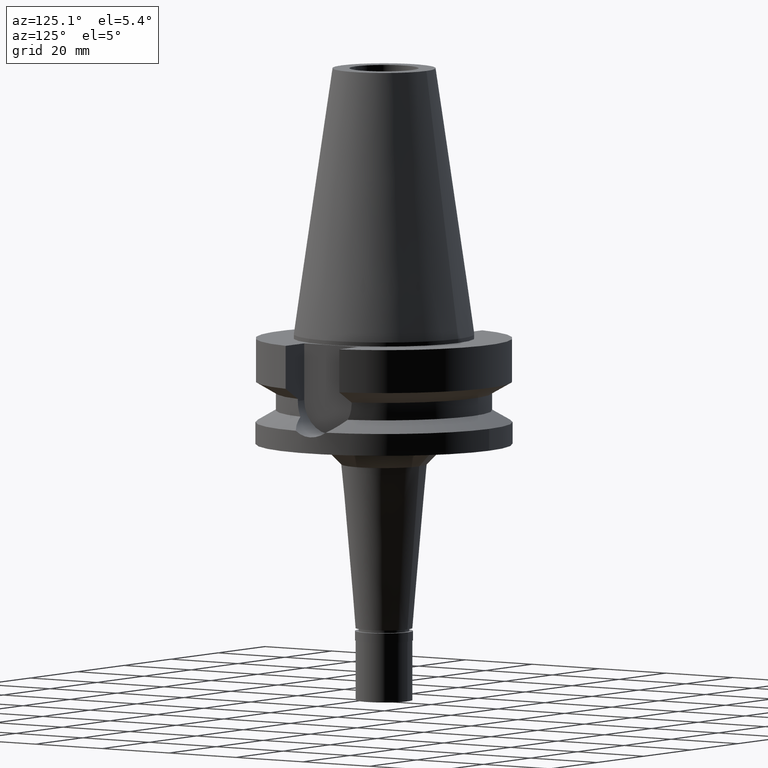
[diagram: clean part render]
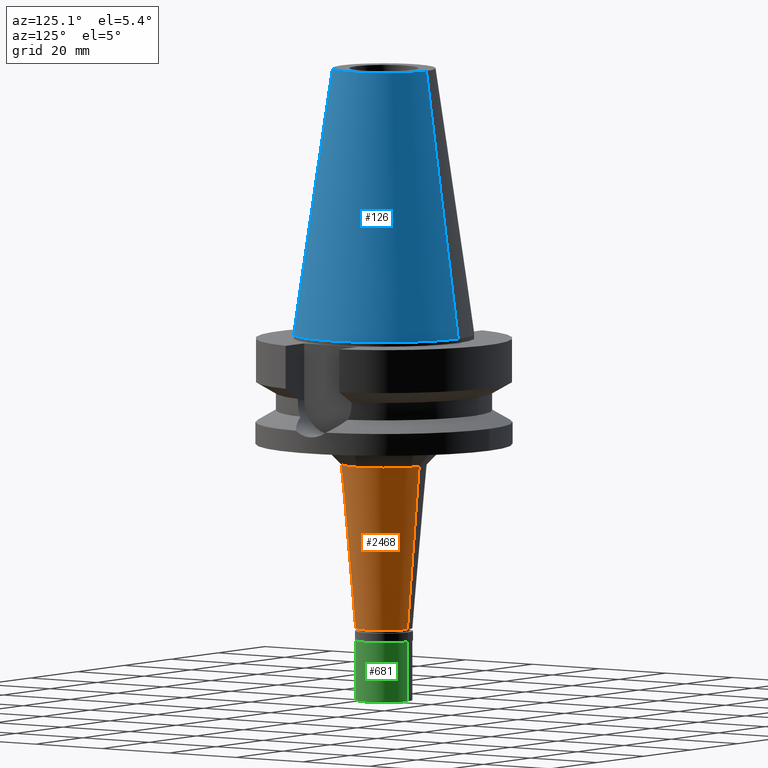
[diagram: same view with three faces highlighted in distinct colors, each labeled with its STEP entity id]
A machine part, auxiliary view with three faces highlighted in distinct colors.
Their STEP definitions:

[orange] entity #2468 — the highlighted conical surface has half-angle 5 deg.
#39 = AXIS2_PLACEMENT_3D ( 'NONE', #2481, #2237, #1292 ) ;
#75 = ORIENTED_EDGE ( 'NONE', *, *, #2161, .T. ) ;
#256 = DIRECTION ( 'NONE',  ( 0.0000000000000000000, -1.000000000000000000, 0.0000000000000000000 ) ) ;
#395 = DIRECTION ( 'NONE',  ( 0.0000000000000000000, -0.08715574274759568807, -0.9961946980917509853 ) ) ;
#436 = VERTEX_POINT ( 'NONE', #2792 ) ;
#515 = VECTOR ( 'NONE', #395, 1000.000000000000114 ) ;
#534 = CARTESIAN_POINT ( 'NONE',  ( 0.0000000000000000000, 0.0000000000000000000, -32.00000000000000000 ) ) ;
#601 = ORIENTED_EDGE ( 'NONE', *, *, #638, .F. ) ;
#638 = EDGE_CURVE ( 'NONE', #436, #792, #1002, .T. ) ;
#688 = DIRECTION ( 'NONE',  ( 0.0000000000000000000, 0.08715574274759568807, -0.9961946980917509853 ) ) ;
#704 = CARTESIAN_POINT ( 'NONE',  ( 0.0000000000000000000, -10.52579314008999845, -32.00000000000000000 ) ) ;
#712 = AXIS2_PLACEMENT_3D ( 'NONE', #2322, #1572, #256 ) ;
#780 = DIRECTION ( 'NONE',  ( 0.0000000000000000000, -1.000000000000000000, 0.0000000000000000000 ) ) ;
#792 = VERTEX_POINT ( 'NONE', #2875 ) ;
#1002 = CIRCLE ( 'NONE', #1642, 10.52579314008999845 ) ;
#1095 = CARTESIAN_POINT ( 'NONE',  ( 0.0000000000000000000, 10.52579314008999845, -32.00000000000000000 ) ) ;
#1241 = VERTEX_POINT ( 'NONE', #2383 ) ;
#1279 = DIRECTION ( 'NONE',  ( 0.0000000000000000000, 0.0000000000000000000, 1.000000000000000000 ) ) ;
#1292 = DIRECTION ( 'NONE',  ( 0.0000000000000000000, 1.000000000000000000, 0.0000000000000000000 ) ) ;
#1390 = LINE ( 'NONE', #704, #2298 ) ;
#1397 = CONICAL_SURFACE ( 'NONE', #39, 8.762896570046999400, 0.08726646259969973729 ) ;
#1572 = DIRECTION ( 'NONE',  ( 0.0000000000000000000, 0.0000000000000000000, 1.000000000000000000 ) ) ;
#1610 = ORIENTED_EDGE ( 'NONE', *, *, #1989, .T. ) ;
#1642 = AXIS2_PLACEMENT_3D ( 'NONE', #534, #1279, #780 ) ;
#1774 = ORIENTED_EDGE ( 'NONE', *, *, #2069, .F. ) ;
#1970 = EDGE_LOOP ( 'NONE', ( #601, #75, #1610, #1774 ) ) ;
#1977 = FACE_OUTER_BOUND ( 'NONE', #1970, .T. ) ;
#1989 = EDGE_CURVE ( 'NONE', #2581, #1241, #2686, .T. ) ;
#2069 = EDGE_CURVE ( 'NONE', #792, #1241, #2467, .T. ) ;
#2161 = EDGE_CURVE ( 'NONE', #436, #2581, #1390, .T. ) ;
#2237 = DIRECTION ( 'NONE',  ( 0.0000000000000000000, 0.0000000000000000000, 1.000000000000000000 ) ) ;
#2298 = VECTOR ( 'NONE', #688, 1000.000000000000114 ) ;
#2322 = CARTESIAN_POINT ( 'NONE',  ( 0.0000000000000000000, 0.0000000000000000000, -72.29999999999999716 ) ) ;
#2383 = CARTESIAN_POINT ( 'NONE',  ( 0.0000000000000000000, 7.000000000000000000, -72.29999999999999716 ) ) ;
#2467 = LINE ( 'NONE', #1095, #515 ) ;
#2468 = ADVANCED_FACE ( 'NONE', ( #1977 ), #1397, .T. ) ;
#2481 = CARTESIAN_POINT ( 'NONE',  ( 0.0000000000000000000, 0.0000000000000000000, -52.14999999999999858 ) ) ;
#2581 = VERTEX_POINT ( 'NONE', #2694 ) ;
#2686 = CIRCLE ( 'NONE', #712, 7.000000000000000000 ) ;
#2694 = CARTESIAN_POINT ( 'NONE',  ( 0.0000000000000000000, -7.000000000000000000, -72.29999999999999716 ) ) ;
#2792 = CARTESIAN_POINT ( 'NONE',  ( 0.0000000000000000000, -10.52579314008999845, -32.00000000000000000 ) ) ;
#2875 = CARTESIAN_POINT ( 'NONE',  ( 0.0000000000000000000, 10.52579314008999845, -32.00000000000000000 ) ) ;

[blue] entity #126 — the highlighted conical surface has half-angle 8.297 deg.
#77 = ORIENTED_EDGE ( 'NONE', *, *, #2661, .T. ) ;
#126 = ADVANCED_FACE ( 'NONE', ( #2363 ), #995, .T. ) ;
#196 = CARTESIAN_POINT ( 'NONE',  ( 0.0000000000000000000, 12.68766899429999917, 65.40000000000000568 ) ) ;
#214 = CARTESIAN_POINT ( 'NONE',  ( 0.0000000000000000000, 1.625106302469000024E-14, 65.40000000000000568 ) ) ;
#232 = LINE ( 'NONE', #1915, #1050 ) ;
#241 = DIRECTION ( 'NONE',  ( 0.0000000000000000000, 1.000000000000000000, 0.0000000000000000000 ) ) ;
#265 = CARTESIAN_POINT ( 'NONE',  ( 0.0000000000000000000, 12.68766899429999917, 65.40000000000000568 ) ) ;
#442 = DIRECTION ( 'NONE',  ( 0.0000000000000000000, -0.1443043893539925626, -0.9895333461855498891 ) ) ;
#510 = CARTESIAN_POINT ( 'NONE',  ( 0.0000000000000000000, 22.22500000000000142, 1.065814103639999827E-13 ) ) ;
#513 = LINE ( 'NONE', #265, #1309 ) ;
#539 = VERTEX_POINT ( 'NONE', #2569 ) ;
#587 = CARTESIAN_POINT ( 'NONE',  ( 0.0000000000000000000, 1.625106302469000024E-14, 2.842170943039999687E-14 ) ) ;
#762 = DIRECTION ( 'NONE',  ( 0.0000000000000000000, 0.0000000000000000000, -1.000000000000000000 ) ) ;
#894 = CARTESIAN_POINT ( 'NONE',  ( 0.0000000000000000000, -12.68766899429999917, 65.40000000000000568 ) ) ;
#995 = CONICAL_SURFACE ( 'NONE', #1638, 17.45633449714999941, 0.1448099680379422438 ) ;
#1050 = VECTOR ( 'NONE', #442, 1000.000000000000114 ) ;
#1067 = DIRECTION ( 'NONE',  ( 0.0000000000000000000, 1.000000000000000000, 0.0000000000000000000 ) ) ;
#1106 = AXIS2_PLACEMENT_3D ( 'NONE', #587, #1935, #1067 ) ;
#1194 = DIRECTION ( 'NONE',  ( 0.0000000000000000000, -1.000000000000000000, 0.0000000000000000000 ) ) ;
#1309 = VECTOR ( 'NONE', #2620, 1000.000000000000114 ) ;
#1326 = EDGE_CURVE ( 'NONE', #2048, #2669, #513, .T. ) ;
#1556 = VERTEX_POINT ( 'NONE', #894 ) ;
#1638 = AXIS2_PLACEMENT_3D ( 'NONE', #1661, #762, #1194 ) ;
#1661 = CARTESIAN_POINT ( 'NONE',  ( 0.0000000000000000000, 1.625106302469000024E-14, 32.70000000000000284 ) ) ;
#1761 = EDGE_CURVE ( 'NONE', #2048, #1556, #1796, .T. ) ;
#1792 = ORIENTED_EDGE ( 'NONE', *, *, #1326, .F. ) ;
#1796 = CIRCLE ( 'NONE', #1961, 12.68766899429999917 ) ;
#1835 = DIRECTION ( 'NONE',  ( 0.0000000000000000000, 0.0000000000000000000, -1.000000000000000000 ) ) ;
#1915 = CARTESIAN_POINT ( 'NONE',  ( 0.0000000000000000000, -12.68766899429999917, 65.40000000000000568 ) ) ;
#1935 = DIRECTION ( 'NONE',  ( 0.0000000000000000000, 0.0000000000000000000, -1.000000000000000000 ) ) ;
#1961 = AXIS2_PLACEMENT_3D ( 'NONE', #214, #1835, #241 ) ;
#2048 = VERTEX_POINT ( 'NONE', #196 ) ;
#2182 = ORIENTED_EDGE ( 'NONE', *, *, #1761, .T. ) ;
#2363 = FACE_OUTER_BOUND ( 'NONE', #2981, .T. ) ;
#2445 = CIRCLE ( 'NONE', #1106, 22.22500000000000142 ) ;
#2569 = CARTESIAN_POINT ( 'NONE',  ( 0.0000000000000000000, -22.22500000000000142, 1.065814103639999827E-13 ) ) ;
#2620 = DIRECTION ( 'NONE',  ( 0.0000000000000000000, 0.1443043893539925626, -0.9895333461855498891 ) ) ;
#2651 = ORIENTED_EDGE ( 'NONE', *, *, #2960, .F. ) ;
#2661 = EDGE_CURVE ( 'NONE', #1556, #539, #232, .T. ) ;
#2669 = VERTEX_POINT ( 'NONE', #510 ) ;
#2960 = EDGE_CURVE ( 'NONE', #2669, #539, #2445, .T. ) ;
#2981 = EDGE_LOOP ( 'NONE', ( #2182, #77, #2651, #1792 ) ) ;

[green] entity #681 — the highlighted cylindrical surface (edge-blend (fillet) strip) has radius 7 mm, axis along (0, 0, 1).
#23 = ORIENTED_EDGE ( 'NONE', *, *, #1548, .T. ) ;
#68 = CARTESIAN_POINT ( 'NONE',  ( 0.0000000000000000000, 7.000000000000000000, -17.00000000000000000 ) ) ;
#152 = DIRECTION ( 'NONE',  ( 0.0000000000000000000, 0.0000000000000000000, 1.000000000000000000 ) ) ;
#249 = EDGE_CURVE ( 'NONE', #2172, #2411, #426, .T. ) ;
#283 = DIRECTION ( 'NONE',  ( 0.0000000000000000000, 1.000000000000000000, 0.0000000000000000000 ) ) ;
#307 = VERTEX_POINT ( 'NONE', #1776 ) ;
#397 = VERTEX_POINT ( 'NONE', #466 ) ;
#425 = VECTOR ( 'NONE', #1388, 1000.000000000000000 ) ;
#426 = LINE ( 'NONE', #2043, #2057 ) ;
#457 = DIRECTION ( 'NONE',  ( 0.0000000000000000000, 0.0000000000000000000, -1.000000000000000000 ) ) ;
#466 = CARTESIAN_POINT ( 'NONE',  ( 0.0000000000000000000, -7.000000000000000000, -2.299999999999999822 ) ) ;
#630 = ORIENTED_EDGE ( 'NONE', *, *, #249, .F. ) ;
#681 = ADVANCED_FACE ( 'NONE', ( #2586 ), #1444, .T. ) ;
#685 = CARTESIAN_POINT ( 'NONE',  ( 0.0000000000000000000, -7.000000000000000000, -2.299999999999999822 ) ) ;
#974 = LINE ( 'NONE', #685, #425 ) ;
#1017 = DIRECTION ( 'NONE',  ( 0.0000000000000000000, 0.0000000000000000000, -1.000000000000000000 ) ) ;
#1069 = DIRECTION ( 'NONE',  ( 0.0000000000000000000, -1.000000000000000000, 0.0000000000000000000 ) ) ;
#1388 = DIRECTION ( 'NONE',  ( 0.0000000000000000000, 0.0000000000000000000, -1.000000000000000000 ) ) ;
#1444 = CYLINDRICAL_SURFACE ( 'NONE', #2304, 7.000000000000000000 ) ;
#1548 = EDGE_CURVE ( 'NONE', #307, #2411, #2358, .T. ) ;
#1659 = DIRECTION ( 'NONE',  ( 0.0000000000000000000, 1.000000000000000000, 0.0000000000000000000 ) ) ;
#1698 = CARTESIAN_POINT ( 'NONE',  ( 0.0000000000000000000, 0.0000000000000000000, -17.85000000000000142 ) ) ;
#1776 = CARTESIAN_POINT ( 'NONE',  ( 0.0000000000000000000, -7.000000000000000000, -17.00000000000000000 ) ) ;
#1794 = AXIS2_PLACEMENT_3D ( 'NONE', #2219, #152, #1069 ) ;
#2001 = ORIENTED_EDGE ( 'NONE', *, *, #2194, .T. ) ;
#2043 = CARTESIAN_POINT ( 'NONE',  ( 0.0000000000000000000, 7.000000000000000000, -2.299999999999999822 ) ) ;
#2057 = VECTOR ( 'NONE', #1017, 1000.000000000000000 ) ;
#2152 = CIRCLE ( 'NONE', #2438, 7.000000000000000000 ) ;
#2172 = VERTEX_POINT ( 'NONE', #2766 ) ;
#2194 = EDGE_CURVE ( 'NONE', #2172, #397, #2152, .T. ) ;
#2219 = CARTESIAN_POINT ( 'NONE',  ( 0.0000000000000000000, 0.0000000000000000000, -17.00000000000000000 ) ) ;
#2265 = EDGE_LOOP ( 'NONE', ( #2001, #2423, #23, #630 ) ) ;
#2304 = AXIS2_PLACEMENT_3D ( 'NONE', #1698, #2621, #283 ) ;
#2358 = CIRCLE ( 'NONE', #1794, 7.000000000000000000 ) ;
#2411 = VERTEX_POINT ( 'NONE', #68 ) ;
#2423 = ORIENTED_EDGE ( 'NONE', *, *, #2805, .T. ) ;
#2438 = AXIS2_PLACEMENT_3D ( 'NONE', #2546, #457, #1659 ) ;
#2546 = CARTESIAN_POINT ( 'NONE',  ( 0.0000000000000000000, 0.0000000000000000000, -2.299999999999999822 ) ) ;
#2586 = FACE_OUTER_BOUND ( 'NONE', #2265, .T. ) ;
#2621 = DIRECTION ( 'NONE',  ( 0.0000000000000000000, 0.0000000000000000000, 1.000000000000000000 ) ) ;
#2766 = CARTESIAN_POINT ( 'NONE',  ( 0.0000000000000000000, 7.000000000000000000, -2.299999999999999822 ) ) ;
#2805 = EDGE_CURVE ( 'NONE', #397, #307, #974, .T. ) ;